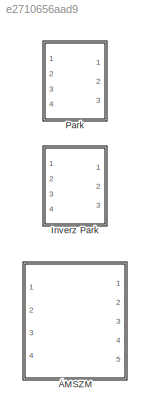
MODEL slx_e2710656aad9
KIND library
CONFIG AbsTol = auto
CONFIG EnableMultiTasking = off
CONFIG FixedStep = auto
CONFIG MaxStep = auto
CONFIG MinStep = auto
CONFIG RelTol = 1e-3
CONFIG SampleTimeConstraint = Unconstrained
CONFIG SolverName = VariableStepAuto
CONFIG StartTime = 0.0
CONFIG StopTime = 10.0
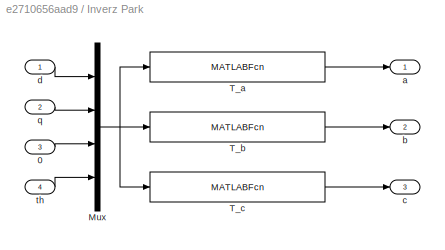
BLOCK [SubSystem] Inverz Park
  Ports = [4, 3]
  RequestExecContextInheritance = off
BLOCK [Inport] Inverz Park/0
  Port = 3
BLOCK [Mux] Inverz Park/Mux
  DisplayOption = bar
  Ports = [4, 1]
BLOCK [MATLABFcn] Inverz Park/T_a
  MATLABFcn = u(1)*cos(u(4)) - u(2)*sin(u(4)) + u(3)
  Ports = [1, 1]
BLOCK [MATLABFcn] Inverz Park/T_b
  MATLABFcn = u(1)*cos(u(4)-2*pi/3) - u(2)*sin(u(4)-2*pi/3) + u(3)
  Ports = [1, 1]
BLOCK [MATLABFcn] Inverz Park/T_c
  MATLABFcn = u(1)*cos(u(4)-4*pi/3) - u(2)*sin(u(4)-4*pi/3) + u(3)
  Ports = [1, 1]
BLOCK [Outport] Inverz Park/a
BLOCK [Outport] Inverz Park/b
  Port = 2
BLOCK [Outport] Inverz Park/c
  Port = 3
BLOCK [Inport] Inverz Park/d
BLOCK [Inport] Inverz Park/q
  Port = 2
BLOCK [Inport] Inverz Park/th
  Port = 4
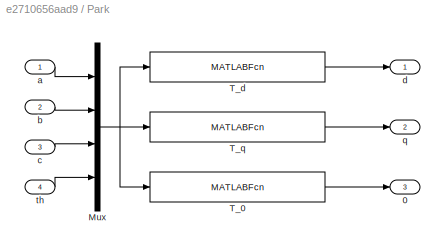
BLOCK [SubSystem] Park
  Ports = [4, 3]
  RequestExecContextInheritance = off
BLOCK [Outport] Park/0
  Port = 3
BLOCK [Mux] Park/Mux
  DisplayOption = bar
  Ports = [4, 1]
BLOCK [MATLABFcn] Park/T_0
  MATLABFcn = 2/3*(u(1)/2 + u(2)/2 + u(3)/2)
  Ports = [1, 1]
BLOCK [MATLABFcn] Park/T_d
  MATLABFcn = 2/3*(u(1)*cos(u(4)) + u(2)*cos(u(4)-2*pi/3) + u(3)*cos(u(4)-4*pi/3))
  Ports = [1, 1]
BLOCK [MATLABFcn] Park/T_q
  MATLABFcn = 2/3*(-u(1)*sin(u(4)) - u(2)*sin(u(4)-2*pi/3) - u(3)*sin(u(4)-4*pi/3))
  Ports = [1, 1]
BLOCK [Inport] Park/a
BLOCK [Inport] Park/b
  Port = 2
BLOCK [Inport] Park/c
  Port = 3
BLOCK [Outport] Park/d
BLOCK [Outport] Park/q
  Port = 2
BLOCK [Inport] Park/th
  Port = 4
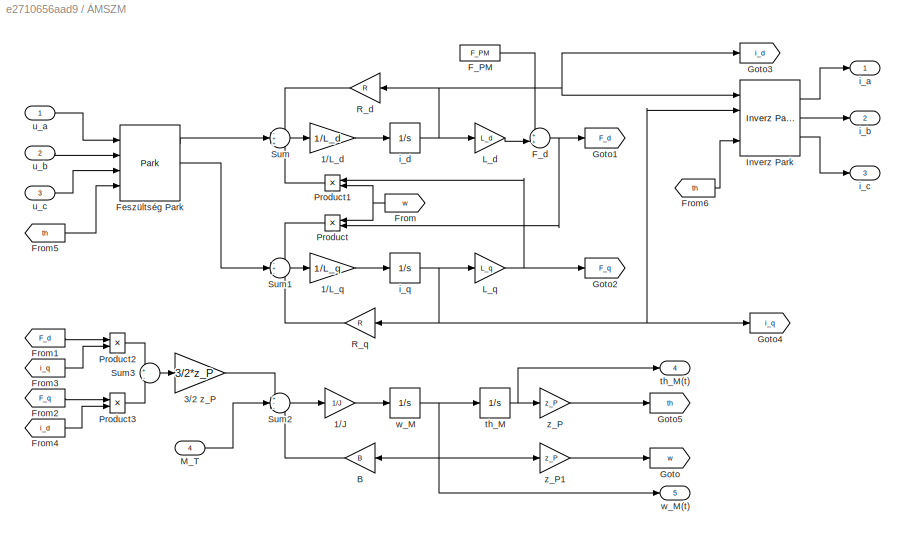
BLOCK [SubSystem] ÁMSZM
  Ports = [4, 5]
  RequestExecContextInheritance = off
BLOCK [Gain] ÁMSZM/1//J
  Gain = 1/J
BLOCK [Gain] ÁMSZM/1//L_d
  Gain = 1/L_d
BLOCK [Gain] ÁMSZM/1//L_q
  Gain = 1/L_q
BLOCK [Gain] ÁMSZM/3//2 z_P
  Gain = 3/2*z_P
BLOCK [Gain] ÁMSZM/B
  Gain = B
BLOCK [Constant] ÁMSZM/F_PM
  Value = F_PM
BLOCK [Sum] ÁMSZM/F_d
  Inputs = ++|
  Ports = [2, 1]
BLOCK [Reference] ÁMSZM/Feszültség Park  REF=$bdroot/Park
  Ports = [4, 3]
  SourceBlock = $bdroot/Park
BLOCK [From] ÁMSZM/From
  GotoTag = w
BLOCK [From] ÁMSZM/From1
  GotoTag = F_d
BLOCK [From] ÁMSZM/From2
  GotoTag = F_q
BLOCK [From] ÁMSZM/From3
  GotoTag = i_q
BLOCK [From] ÁMSZM/From4
  GotoTag = i_d
BLOCK [From] ÁMSZM/From5
  GotoTag = th
BLOCK [From] ÁMSZM/From6
  GotoTag = th
BLOCK [Goto] ÁMSZM/Goto
  GotoTag = w
BLOCK [Goto] ÁMSZM/Goto1
  GotoTag = F_d
BLOCK [Goto] ÁMSZM/Goto2
  GotoTag = F_q
BLOCK [Goto] ÁMSZM/Goto3
  GotoTag = i_d
BLOCK [Goto] ÁMSZM/Goto4
  GotoTag = i_q
BLOCK [Goto] ÁMSZM/Goto5
  GotoTag = th
BLOCK [Reference] ÁMSZM/Inverz Park  REF=$bdroot/Inverz Park
  Ports = [4, 3]
  SourceBlock = $bdroot/Inverz Park
BLOCK [Gain] ÁMSZM/L_d
  Gain = L_d
BLOCK [Gain] ÁMSZM/L_q
  Gain = L_q
BLOCK [Inport] ÁMSZM/M_T
  Port = 4
BLOCK [Product] ÁMSZM/Product
  Ports = [2, 1]
BLOCK [Product] ÁMSZM/Product1
  Ports = [2, 1]
BLOCK [Product] ÁMSZM/Product2
  Ports = [2, 1]
BLOCK [Product] ÁMSZM/Product3
  Ports = [2, 1]
BLOCK [Gain] ÁMSZM/R_d
  Gain = R
BLOCK [Gain] ÁMSZM/R_q
  Gain = R
BLOCK [Sum] ÁMSZM/Sum
  Inputs = -++
  Ports = [3, 1]
BLOCK [Sum] ÁMSZM/Sum1
  Inputs = -+-
  Ports = [3, 1]
BLOCK [Sum] ÁMSZM/Sum2
  Inputs = +--
  Ports = [3, 1]
BLOCK [Sum] ÁMSZM/Sum3
  Inputs = +|-
  Ports = [2, 1]
BLOCK [Outport] ÁMSZM/i_a
BLOCK [Outport] ÁMSZM/i_b
  Port = 2
BLOCK [Outport] ÁMSZM/i_c
  Port = 3
BLOCK [Integrator] ÁMSZM/i_d
  InitialCondition = i_d0
  Ports = [1, 1]
BLOCK [Integrator] ÁMSZM/i_q
  InitialCondition = i_q0
  Ports = [1, 1]
BLOCK [Integrator] ÁMSZM/th_M
  InitialCondition = th_M0
  Ports = [1, 1]
BLOCK [Outport] ÁMSZM/th_M(t)
  Port = 4
BLOCK [Inport] ÁMSZM/u_a
BLOCK [Inport] ÁMSZM/u_b
  Port = 2
BLOCK [Inport] ÁMSZM/u_c
  Port = 3
BLOCK [Integrator] ÁMSZM/w_M
  InitialCondition = w_M0
  Ports = [1, 1]
BLOCK [Outport] ÁMSZM/w_M(t)
  Port = 5
BLOCK [Gain] ÁMSZM/z_P
  Gain = z_P
BLOCK [Gain] ÁMSZM/z_P1
  Gain = z_P
LINE Inverz Park/0:1 -> Inverz Park/Mux:3
NET Inverz Park/Mux:1 -> Inverz Park/T_a:1, Inverz Park/T_b:1, Inverz Park/T_c:1
LINE Inverz Park/T_a:1 -> Inverz Park/a:1
LINE Inverz Park/T_b:1 -> Inverz Park/b:1
LINE Inverz Park/T_c:1 -> Inverz Park/c:1
LINE Inverz Park/d:1 -> Inverz Park/Mux:1
LINE Inverz Park/q:1 -> Inverz Park/Mux:2
LINE Inverz Park/th:1 -> Inverz Park/Mux:4
NET Park/Mux:1 -> Park/T_0:1, Park/T_d:1, Park/T_q:1
LINE Park/T_0:1 -> Park/0:1
LINE Park/T_d:1 -> Park/d:1
LINE Park/T_q:1 -> Park/q:1
LINE Park/a:1 -> Park/Mux:1
LINE Park/b:1 -> Park/Mux:2
LINE Park/c:1 -> Park/Mux:3
LINE Park/th:1 -> Park/Mux:4
LINE ÁMSZM/1//J:1 -> ÁMSZM/w_M:1
LINE ÁMSZM/1//L_d:1 -> ÁMSZM/i_d:1
LINE ÁMSZM/1//L_q:1 -> ÁMSZM/i_q:1
LINE ÁMSZM/3//2 z_P:1 -> ÁMSZM/Sum2:1
LINE ÁMSZM/B:1 -> ÁMSZM/Sum2:3
LINE ÁMSZM/F_PM:1 -> ÁMSZM/F_d:1
NET ÁMSZM/F_d:1 -> ÁMSZM/Goto1:1, ÁMSZM/Product:2
LINE ÁMSZM/Feszültség Park:1 -> ÁMSZM/Sum:2
LINE ÁMSZM/Feszültség Park:2 -> ÁMSZM/Sum1:2
LINE ÁMSZM/From1:1 -> ÁMSZM/Product2:1
LINE ÁMSZM/From2:1 -> ÁMSZM/Product3:1
LINE ÁMSZM/From3:1 -> ÁMSZM/Product2:2
LINE ÁMSZM/From4:1 -> ÁMSZM/Product3:2
LINE ÁMSZM/From5:1 -> ÁMSZM/Feszültség Park:4
LINE ÁMSZM/From6:1 -> ÁMSZM/Inverz Park:4
NET ÁMSZM/From:1 -> ÁMSZM/Product1:2, ÁMSZM/Product:1
LINE ÁMSZM/Inverz Park:1 -> ÁMSZM/i_a:1
LINE ÁMSZM/Inverz Park:2 -> ÁMSZM/i_b:1
LINE ÁMSZM/Inverz Park:3 -> ÁMSZM/i_c:1
LINE ÁMSZM/L_d:1 -> ÁMSZM/F_d:2
NET ÁMSZM/L_q:1 -> ÁMSZM/Goto2:1, ÁMSZM/Product1:1
LINE ÁMSZM/M_T:1 -> ÁMSZM/Sum2:2
LINE ÁMSZM/Product1:1 -> ÁMSZM/Sum:3
LINE ÁMSZM/Product2:1 -> ÁMSZM/Sum3:1
LINE ÁMSZM/Product3:1 -> ÁMSZM/Sum3:2
LINE ÁMSZM/Product:1 -> ÁMSZM/Sum1:1
LINE ÁMSZM/R_d:1 -> ÁMSZM/Sum:1
LINE ÁMSZM/R_q:1 -> ÁMSZM/Sum1:3
LINE ÁMSZM/Sum1:1 -> ÁMSZM/1//L_q:1
LINE ÁMSZM/Sum2:1 -> ÁMSZM/1//J:1
LINE ÁMSZM/Sum3:1 -> ÁMSZM/3//2 z_P:1
LINE ÁMSZM/Sum:1 -> ÁMSZM/1//L_d:1
NET ÁMSZM/i_d:1 -> ÁMSZM/Goto3:1, ÁMSZM/Inverz Park:1, ÁMSZM/L_d:1, ÁMSZM/R_d:1
NET ÁMSZM/i_q:1 -> ÁMSZM/Goto4:1, ÁMSZM/Inverz Park:2, ÁMSZM/L_q:1, ÁMSZM/R_q:1
NET ÁMSZM/th_M:1 -> ÁMSZM/th_M(t):1, ÁMSZM/z_P:1
LINE ÁMSZM/u_a:1 -> ÁMSZM/Feszültség Park:1
LINE ÁMSZM/u_b:1 -> ÁMSZM/Feszültség Park:2
LINE ÁMSZM/u_c:1 -> ÁMSZM/Feszültség Park:3
NET ÁMSZM/w_M:1 -> ÁMSZM/B:1, ÁMSZM/th_M:1, ÁMSZM/w_M(t):1, ÁMSZM/z_P1:1
LINE ÁMSZM/z_P1:1 -> ÁMSZM/Goto:1
LINE ÁMSZM/z_P:1 -> ÁMSZM/Goto5:1
note: NET lines group one-source signal fan-out (src -> all destinations, sorted); 1:1 wires keep LINE
